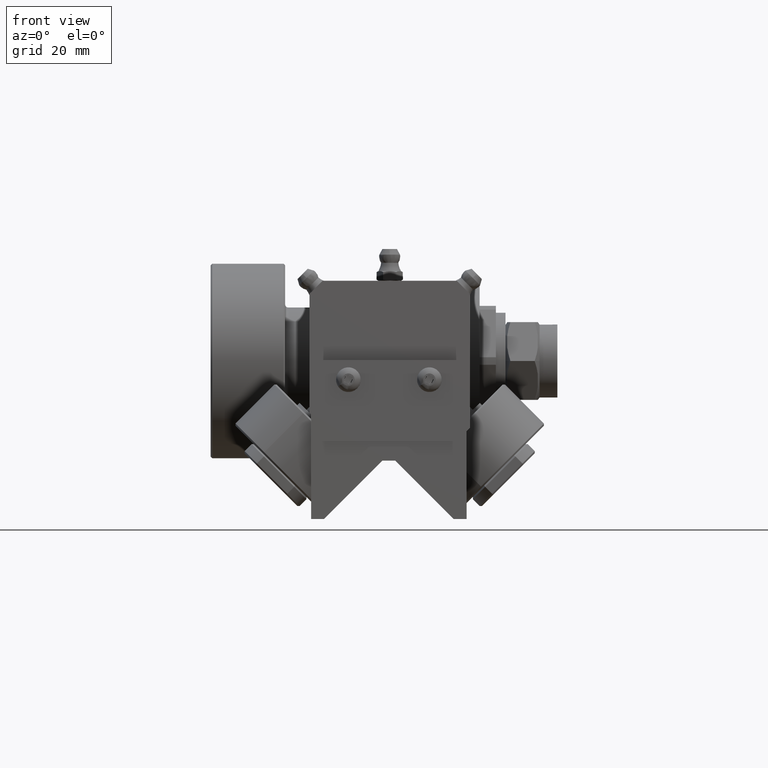
[diagram: clean part render]
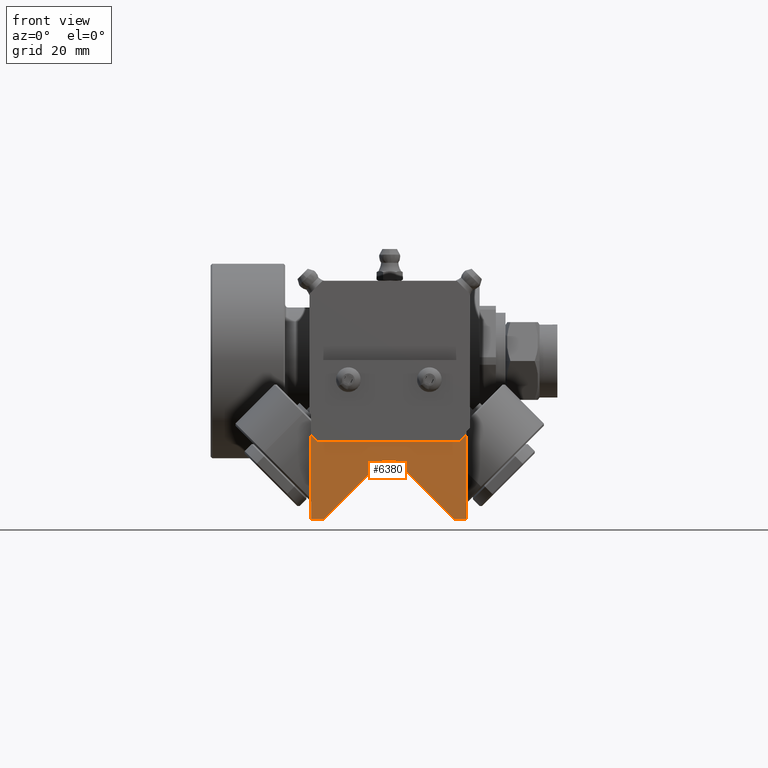
[diagram: same view with one face highlighted and labeled with its STEP entity id]
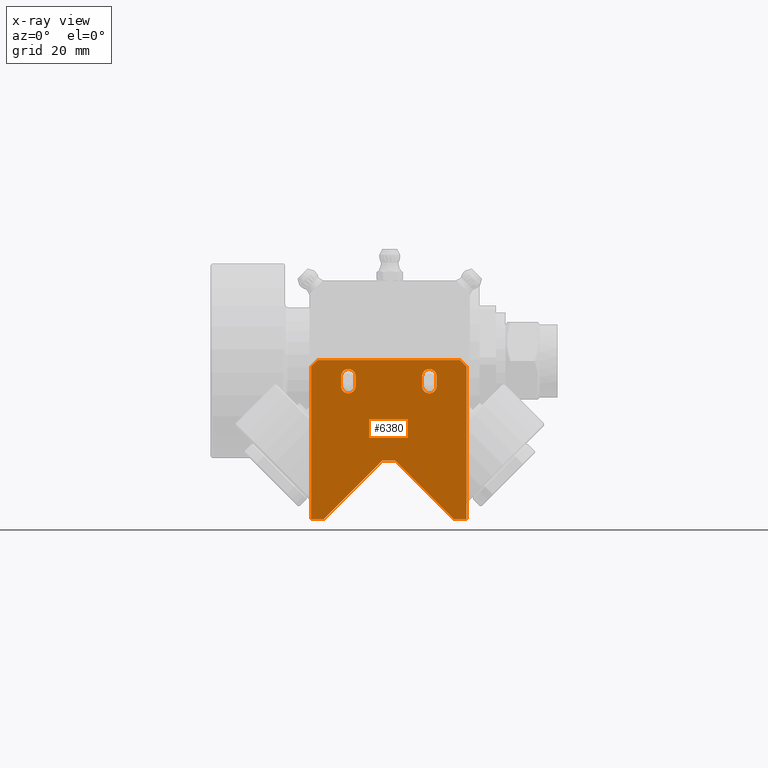
[diagram: x-ray of the same camera — body ghosted, the highlighted face saturated]
A machine part, front view. The second image highlights one B-rep face of the part: STEP entity #6380.
The next image is the same camera in x-ray: the body ghosted, the highlighted face saturated — about 0% of this face is hidden behind the body in this view.
In plain terms, the highlighted planar face has unit normal (0, -1, 0).
Its self-contained STEP definition (entity closure, byte-faithful):
#478=FACE_BOUND('',#1376,.T.);
#479=FACE_BOUND('',#1377,.T.);
#612=PLANE('',#7519);
#947=FACE_OUTER_BOUND('',#1375,.T.);
#1375=EDGE_LOOP('',(#5732,#5733,#5734,#5735,#5736,#5737,#5738,#5739,#5740,
#5741));
#1376=EDGE_LOOP('',(#5742,#5743,#5744,#5745));
#1377=EDGE_LOOP('',(#5746,#5747,#5748,#5749));
#1739=CIRCLE('',#7502,2.25);
#1740=CIRCLE('',#7505,2.25);
#1741=CIRCLE('',#7508,2.25);
#1742=CIRCLE('',#7511,2.25);
#2123=LINE('',#13039,#2492);
#2129=LINE('',#13050,#2498);
#2143=LINE('',#13086,#2512);
#2145=LINE('',#13090,#2514);
#2149=LINE('',#13100,#2518);
#2151=LINE('',#13106,#2520);
#2155=LINE('',#13116,#2524);
#2157=LINE('',#13122,#2526);
#2159=LINE('',#13127,#2528);
#2161=LINE('',#13131,#2530);
#2163=LINE('',#13135,#2532);
#2165=LINE('',#13139,#2534);
#2167=LINE('',#13142,#2536);
#2168=LINE('',#13144,#2537);
#2492=VECTOR('',#9138,10.);
#2498=VECTOR('',#9146,10.);
#2512=VECTOR('',#9172,10.);
#2514=VECTOR('',#9176,10.);
#2518=VECTOR('',#9186,10.);
#2520=VECTOR('',#9194,10.);
#2524=VECTOR('',#9204,10.);
#2526=VECTOR('',#9212,10.);
#2528=VECTOR('',#9216,10.);
#2530=VECTOR('',#9220,10.);
#2532=VECTOR('',#9224,10.);
#2534=VECTOR('',#9228,10.);
#2536=VECTOR('',#9232,10.);
#2537=VECTOR('',#9235,10.);
#3124=VERTEX_POINT('',#13037);
#3125=VERTEX_POINT('',#13038);
#3129=VERTEX_POINT('',#13048);
#3145=VERTEX_POINT('',#13084);
#3146=VERTEX_POINT('',#13088);
#3147=VERTEX_POINT('',#13092);
#3148=VERTEX_POINT('',#13094);
#3149=VERTEX_POINT('',#13098);
#3150=VERTEX_POINT('',#13102);
#3151=VERTEX_POINT('',#13108);
#3152=VERTEX_POINT('',#13110);
#3153=VERTEX_POINT('',#13114);
#3154=VERTEX_POINT('',#13118);
#3155=VERTEX_POINT('',#13124);
#3156=VERTEX_POINT('',#13126);
#3157=VERTEX_POINT('',#13130);
#3158=VERTEX_POINT('',#13134);
#3159=VERTEX_POINT('',#13138);
#3983=EDGE_CURVE('',#3124,#3125,#2123,.T.);
#3989=EDGE_CURVE('',#3124,#3129,#2129,.T.);
#4007=EDGE_CURVE('',#3145,#3129,#2143,.T.);
#4009=EDGE_CURVE('',#3145,#3146,#2145,.T.);
#4012=EDGE_CURVE('',#3147,#3148,#1739,.T.);
#4014=EDGE_CURVE('',#3148,#3149,#2149,.T.);
#4016=EDGE_CURVE('',#3149,#3150,#1740,.T.);
#4017=EDGE_CURVE('',#3150,#3147,#2151,.T.);
#4020=EDGE_CURVE('',#3151,#3152,#1741,.T.);
#4022=EDGE_CURVE('',#3152,#3153,#2155,.T.);
#4024=EDGE_CURVE('',#3153,#3154,#1742,.T.);
#4025=EDGE_CURVE('',#3154,#3151,#2157,.T.);
#4027=EDGE_CURVE('',#3156,#3155,#2159,.T.);
#4029=EDGE_CURVE('',#3157,#3156,#2161,.T.);
#4031=EDGE_CURVE('',#3158,#3157,#2163,.T.);
#4033=EDGE_CURVE('',#3159,#3158,#2165,.T.);
#4035=EDGE_CURVE('',#3146,#3159,#2167,.T.);
#4036=EDGE_CURVE('',#3155,#3125,#2168,.T.);
#5732=ORIENTED_EDGE('',*,*,#3983,.F.);
#5733=ORIENTED_EDGE('',*,*,#3989,.T.);
#5734=ORIENTED_EDGE('',*,*,#4007,.F.);
#5735=ORIENTED_EDGE('',*,*,#4009,.T.);
#5736=ORIENTED_EDGE('',*,*,#4035,.T.);
#5737=ORIENTED_EDGE('',*,*,#4033,.T.);
#5738=ORIENTED_EDGE('',*,*,#4031,.T.);
#5739=ORIENTED_EDGE('',*,*,#4029,.T.);
#5740=ORIENTED_EDGE('',*,*,#4027,.T.);
#5741=ORIENTED_EDGE('',*,*,#4036,.T.);
#5742=ORIENTED_EDGE('',*,*,#4012,.T.);
#5743=ORIENTED_EDGE('',*,*,#4014,.T.);
#5744=ORIENTED_EDGE('',*,*,#4016,.T.);
#5745=ORIENTED_EDGE('',*,*,#4017,.T.);
#5746=ORIENTED_EDGE('',*,*,#4020,.T.);
#5747=ORIENTED_EDGE('',*,*,#4022,.T.);
#5748=ORIENTED_EDGE('',*,*,#4024,.T.);
#5749=ORIENTED_EDGE('',*,*,#4025,.T.);
#6380=ADVANCED_FACE('',(#947,#478,#479),#612,.T.);
#7502=AXIS2_PLACEMENT_3D('',#13096,#9181,#9182);
#7505=AXIS2_PLACEMENT_3D('',#13104,#9190,#9191);
#7508=AXIS2_PLACEMENT_3D('',#13112,#9199,#9200);
#7511=AXIS2_PLACEMENT_3D('',#13120,#9208,#9209);
#7519=AXIS2_PLACEMENT_3D('',#13145,#9236,#9237);
#9138=DIRECTION('',(-0.707106781186548,0.,-0.707106781186548));
#9146=DIRECTION('',(1.,0.,0.));
#9172=DIRECTION('',(-0.707106781186548,0.,0.707106781186548));
#9176=DIRECTION('',(0.,0.,-1.));
#9181=DIRECTION('center_axis',(0.,-1.,0.));
#9182=DIRECTION('ref_axis',(-1.,0.,0.));
#9186=DIRECTION('',(-7.40148683083438E-16,0.,-1.));
#9190=DIRECTION('center_axis',(0.,-1.,0.));
#9191=DIRECTION('ref_axis',(1.,0.,0.));
#9194=DIRECTION('',(7.40148683083438E-16,0.,1.));
#9199=DIRECTION('center_axis',(0.,-1.,0.));
#9200=DIRECTION('ref_axis',(-1.,0.,0.));
#9204=DIRECTION('',(0.,0.,-1.));
#9208=DIRECTION('center_axis',(0.,-1.,0.));
#9209=DIRECTION('ref_axis',(1.,0.,0.));
#9212=DIRECTION('',(0.,0.,1.));
#9216=DIRECTION('',(-1.,0.,0.));
#9220=DIRECTION('',(-0.707106781186547,0.,-0.707106781186548));
#9224=DIRECTION('',(-1.,0.,0.));
#9228=DIRECTION('',(-0.707106781186547,0.,0.707106781186548));
#9232=DIRECTION('',(-1.,0.,0.));
#9235=DIRECTION('',(0.,0.,1.));
#9236=DIRECTION('center_axis',(0.,1.,0.));
#9237=DIRECTION('ref_axis',(0.,0.,1.));
#13037=CARTESIAN_POINT('',(-22.,1.25,24.5));
#13038=CARTESIAN_POINT('',(-24.,1.25,22.5));
#13039=CARTESIAN_POINT('',(-22.9277051124084,1.25,23.5722948875916));
#13048=CARTESIAN_POINT('',(22.,1.25,24.5));
#13050=CARTESIAN_POINT('',(24.,1.25,24.5));
#13084=CARTESIAN_POINT('',(24.,1.25,22.5));
#13086=CARTESIAN_POINT('',(22.9277051124084,1.25,23.5722948875916));
#13088=CARTESIAN_POINT('',(24.,1.25,-24.5));
#13090=CARTESIAN_POINT('',(24.,1.25,-24.5));
#13092=CARTESIAN_POINT('',(14.75,1.25,19.5));
#13094=CARTESIAN_POINT('',(10.25,1.25,19.5));
#13096=CARTESIAN_POINT('Origin',(12.5,1.25,19.5));
#13098=CARTESIAN_POINT('',(10.25,1.25,16.5));
#13100=CARTESIAN_POINT('',(10.25,1.25,8.64458977518319));
#13102=CARTESIAN_POINT('',(14.75,1.25,16.5));
#13104=CARTESIAN_POINT('Origin',(12.5,1.25,16.5));
#13106=CARTESIAN_POINT('',(14.75,1.25,10.1445897751832));
#13108=CARTESIAN_POINT('',(-10.25,1.25,19.5));
#13110=CARTESIAN_POINT('',(-14.75,1.25,19.5));
#13112=CARTESIAN_POINT('Origin',(-12.5,1.25,19.5));
#13114=CARTESIAN_POINT('',(-14.75,1.25,16.5));
#13116=CARTESIAN_POINT('',(-14.75,1.25,8.64458977518319));
#13118=CARTESIAN_POINT('',(-10.25,1.25,16.5));
#13120=CARTESIAN_POINT('Origin',(-12.5,1.25,16.5));
#13122=CARTESIAN_POINT('',(-10.25,1.25,10.1445897751832));
#13124=CARTESIAN_POINT('',(-24.,1.25,-24.5));
#13126=CARTESIAN_POINT('',(-20.,1.25,-24.5));
#13127=CARTESIAN_POINT('',(-24.,1.25,-24.5));
#13130=CARTESIAN_POINT('',(-2.00000000000001,1.25,-6.5));
#13131=CARTESIAN_POINT('',(-20.,1.25,-24.5));
#13134=CARTESIAN_POINT('',(2.00000000000001,1.25,-6.5));
#13135=CARTESIAN_POINT('',(-2.00000000000001,1.25,-6.5));
#13138=CARTESIAN_POINT('',(20.,1.25,-24.5));
#13139=CARTESIAN_POINT('',(2.00000000000001,1.25,-6.5));
#13142=CARTESIAN_POINT('',(20.,1.25,-24.5));
#13144=CARTESIAN_POINT('',(-24.,1.25,24.5));
#13145=CARTESIAN_POINT('Origin',(0.,1.25,0.789179550366388));